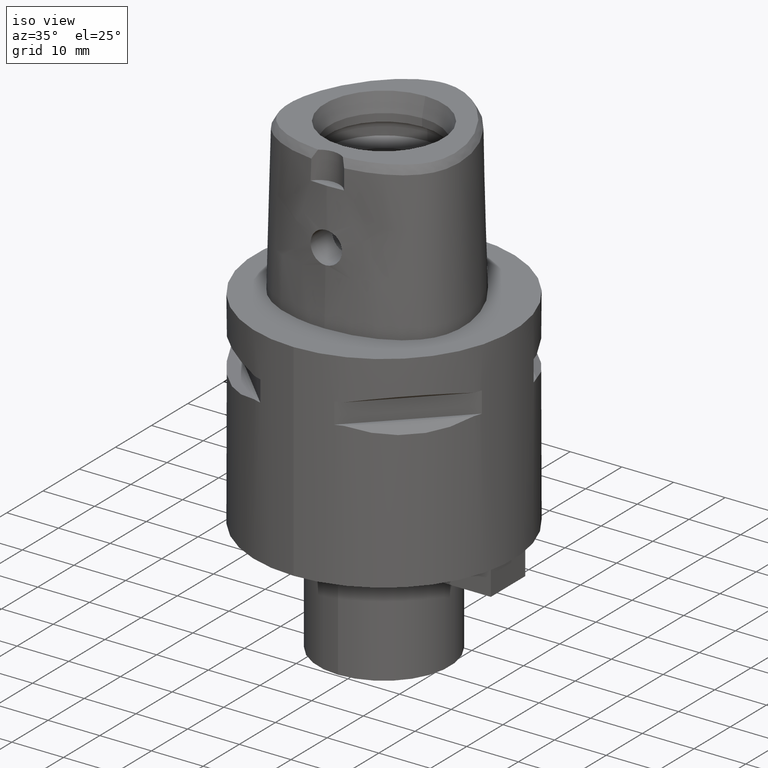
[diagram: clean part render]
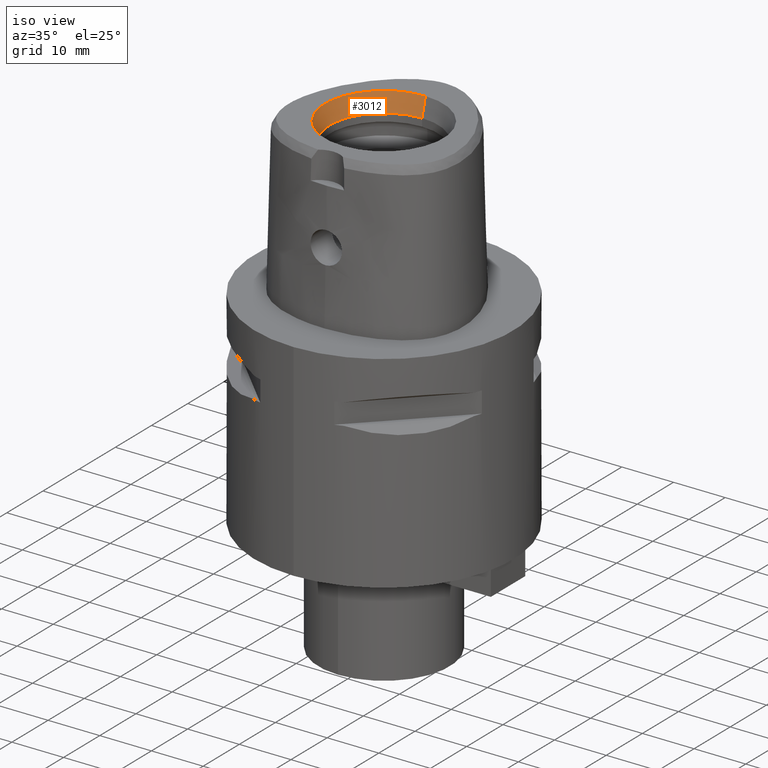
[diagram: same view with one face highlighted and labeled with its STEP entity id]
A machine part, iso view. The second image highlights one B-rep face of the part: STEP entity #3012.
In plain terms, the highlighted conical surface has half-angle 15 deg.
Its self-contained STEP definition (entity closure, byte-faithful):
#114=CARTESIAN_POINT('',(0.E0,1.570609519906E-14,3.E1));
#115=DIRECTION('',(0.E0,0.E0,1.E0));
#116=DIRECTION('',(0.E0,1.E0,0.E0));
#117=AXIS2_PLACEMENT_3D('',#114,#115,#116);
#1072=CARTESIAN_POINT('',(0.E0,1.570609519906E-14,2.65E1));
#1073=DIRECTION('',(0.E0,0.E0,1.E0));
#1074=DIRECTION('',(0.E0,1.E0,0.E0));
#1075=AXIS2_PLACEMENT_3D('',#1072,#1073,#1074);
#1080=DIRECTION('',(0.E0,-2.588190451024E-1,9.659258262891E-1));
#1081=VECTOR('',#1080,3.623466631436E0);
#1082=CARTESIAN_POINT('',(0.E0,-1.05E1,2.65E1));
#1083=LINE('',#1082,#1081);
#1095=DIRECTION('',(0.E0,2.588190451024E-1,9.659258262891E-1));
#1096=VECTOR('',#1095,3.623466631436E0);
#1097=CARTESIAN_POINT('',(0.E0,1.05E1,2.65E1));
#1098=LINE('',#1097,#1096);
#1547=CARTESIAN_POINT('',(0.E0,1.143782217350E1,3.E1));
#1548=CARTESIAN_POINT('',(0.E0,-1.143782217350E1,3.E1));
#1549=VERTEX_POINT('',#1547);
#1550=VERTEX_POINT('',#1548);
#1701=CARTESIAN_POINT('',(0.E0,-1.05E1,2.65E1));
#1702=VERTEX_POINT('',#1701);
#1703=CARTESIAN_POINT('',(0.E0,1.05E1,2.65E1));
#1704=VERTEX_POINT('',#1703);
#2999=CARTESIAN_POINT('',(0.E0,1.570609519906E-14,2.825E1));
#3000=DIRECTION('',(0.E0,0.E0,1.E0));
#3001=DIRECTION('',(0.E0,1.E0,0.E0));
#3002=AXIS2_PLACEMENT_3D('',#2999,#3000,#3001);
#3003=CONICAL_SURFACE('',#3002,1.096891108675E1,1.5E1);
#3004=ORIENTED_EDGE('',*,*,#1734,.F.);
#3006=ORIENTED_EDGE('',*,*,#3005,.F.);
#3007=ORIENTED_EDGE('',*,*,#2992,.T.);
#3009=ORIENTED_EDGE('',*,*,#3008,.T.);
#3010=EDGE_LOOP('',(#3004,#3006,#3007,#3009));
#3011=FACE_OUTER_BOUND('',#3010,.F.);
#118=CIRCLE('',#117,1.143782217350E1);
#1076=CIRCLE('',#1075,1.05E1);
#1734=EDGE_CURVE('',#1549,#1550,#118,.T.);
#2992=EDGE_CURVE('',#1704,#1702,#1076,.T.);
#3005=EDGE_CURVE('',#1704,#1549,#1098,.T.);
#3008=EDGE_CURVE('',#1702,#1550,#1083,.T.);
#3012=ADVANCED_FACE('',(#3011),#3003,.F.);